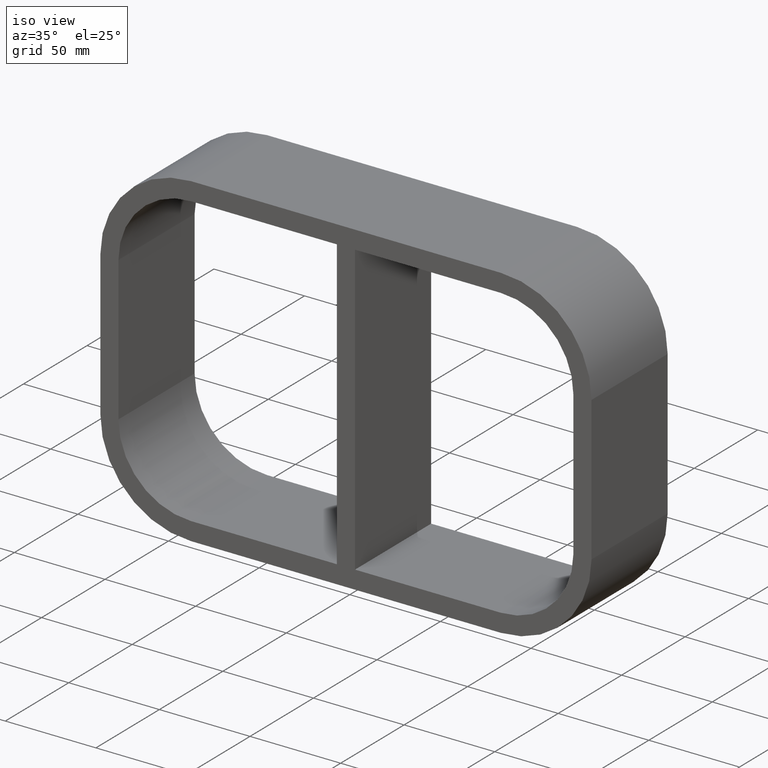
[diagram: clean part render]
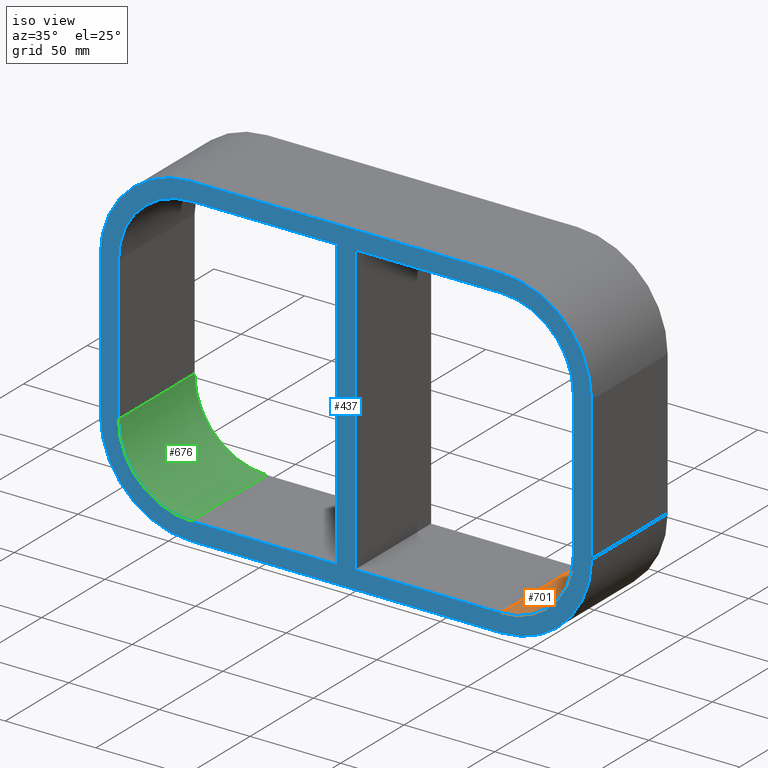
[diagram: same view with three faces highlighted in distinct colors, each labeled with its STEP entity id]
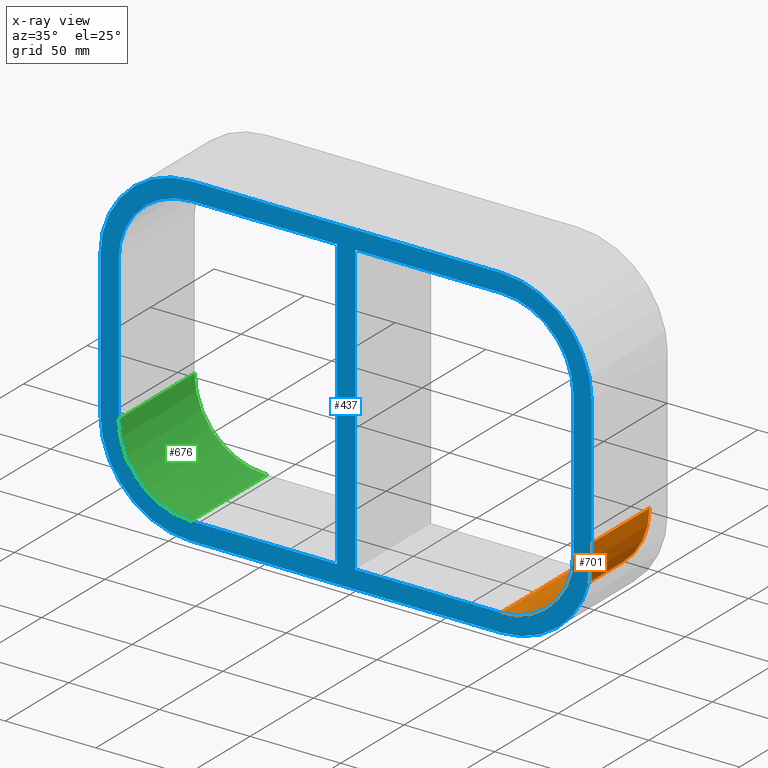
[diagram: x-ray of the same camera — body ghosted, the three highlighted faces saturated]
A machine part, iso view with three faces highlighted in distinct colors.
The next image is the same camera in x-ray (body ghosted, the three faces saturated) — at least one of them is partly hidden behind the body in this view.
Their STEP definitions:

[orange] entity #701 — the highlighted cylindrical surface (partial cylindrical patch) has radius 40 mm, axis along (0, -1, 0).
#185=CARTESIAN_POINT('',(85.5,-3.0,-79.750000000000014));
#186=VERTEX_POINT('',#185);
#193=CARTESIAN_POINT('',(85.5,57.0,-79.750000000000014));
#194=VERTEX_POINT('',#193);
#195=CARTESIAN_POINT('',(85.5,57.0,-79.750000000000014));
#196=DIRECTION('',(0.0,-1.0,0.0));
#197=VECTOR('',#196,60.0);
#198=LINE('',#195,#197);
#199=EDGE_CURVE('',#194,#186,#198,.T.);
#419=CARTESIAN_POINT('',(125.5,-3.0,-39.750000000000014));
#420=VERTEX_POINT('',#419);
#427=CARTESIAN_POINT('',(85.5,-3.0,-39.750000000000014));
#428=DIRECTION('',(0.0,-1.0,0.0));
#429=DIRECTION('',(0.707106781186547,0.0,-0.707106781186547));
#430=AXIS2_PLACEMENT_3D('',#427,#428,#429);
#431=CIRCLE('',#430,39.999999999999993);
#432=EDGE_CURVE('',#186,#420,#431,.T.);
#677=CARTESIAN_POINT('',(85.5,0.0,-39.750000000000014));
#678=DIRECTION('',(0.0,-1.0,0.0));
#679=DIRECTION('',(0.707106781186547,0.0,-0.707106781186547));
#680=AXIS2_PLACEMENT_3D('',#677,#678,#679);
#681=CYLINDRICAL_SURFACE('',#680,40.0);
#682=CARTESIAN_POINT('',(125.5,57.0,-39.750000000000014));
#683=VERTEX_POINT('',#682);
#684=CARTESIAN_POINT('',(85.5,57.0,-39.750000000000014));
#685=DIRECTION('',(0.0,1.0,0.0));
#686=DIRECTION('',(0.707106781186547,0.0,-0.707106781186547));
#687=AXIS2_PLACEMENT_3D('',#684,#685,#686);
#688=CIRCLE('',#687,39.999999999999993);
#689=EDGE_CURVE('',#683,#194,#688,.T.);
#690=ORIENTED_EDGE('',*,*,#689,.T.);
#691=ORIENTED_EDGE('',*,*,#199,.T.);
#692=ORIENTED_EDGE('',*,*,#432,.T.);
#693=CARTESIAN_POINT('',(125.5,-3.0,-39.750000000000014));
#694=DIRECTION('',(0.0,1.0,0.0));
#695=VECTOR('',#694,60.0);
#696=LINE('',#693,#695);
#697=EDGE_CURVE('',#420,#683,#696,.T.);
#698=ORIENTED_EDGE('',*,*,#697,.T.);
#699=EDGE_LOOP('',(#690,#691,#692,#698));
#700=FACE_OUTER_BOUND('',#699,.T.);
#701=ADVANCED_FACE('',(#700),#681,.F.);

[blue] entity #437 — the highlighted planar face has unit normal (0, 1, 0).
#73=CARTESIAN_POINT('',(-5.000000000001492,-3.0,-79.750000000000014));
#74=VERTEX_POINT('',#73);
#75=CARTESIAN_POINT('',(-5.00000000000151,-3.0,79.750000000000014));
#76=VERTEX_POINT('',#75);
#77=CARTESIAN_POINT('',(-5.000000000001492,-3.0,-79.750000000000014));
#78=DIRECTION('',(0.0,0.0,1.0));
#79=VECTOR('',#78,159.50000000000003);
#80=LINE('',#77,#79);
#81=EDGE_CURVE('',#74,#76,#80,.T.);
#113=CARTESIAN_POINT('',(5.0,-3.0,79.750000000000014));
#114=VERTEX_POINT('',#113);
#115=CARTESIAN_POINT('',(5.0,-3.0,-79.749999999985036));
#116=VERTEX_POINT('',#115);
#117=CARTESIAN_POINT('',(5.0,-3.0,79.750000000000014));
#118=DIRECTION('',(0.0,0.0,-1.0));
#119=VECTOR('',#118,159.49999999998505);
#120=LINE('',#117,#119);
#121=EDGE_CURVE('',#114,#116,#120,.T.);
#162=CARTESIAN_POINT('',(-85.5,-3.0,-79.750000000000014));
#163=VERTEX_POINT('',#162);
#170=CARTESIAN_POINT('',(-5.000000000001492,-3.0,-79.750000000000014));
#171=DIRECTION('',(-1.0,0.0,0.0));
#172=VECTOR('',#171,80.499999999998508);
#173=LINE('',#170,#172);
#174=EDGE_CURVE('',#74,#163,#173,.T.);
#185=CARTESIAN_POINT('',(85.5,-3.0,-79.750000000000014));
#186=VERTEX_POINT('',#185);
#187=CARTESIAN_POINT('',(85.5,-3.0,-79.750000000000014));
#188=DIRECTION('',(-1.0,0.0,0.0));
#189=VECTOR('',#188,80.5);
#190=LINE('',#187,#189);
#191=EDGE_CURVE('',#186,#116,#190,.T.);
#224=CARTESIAN_POINT('',(85.5,-3.0,79.750000000000014));
#225=VERTEX_POINT('',#224);
#232=CARTESIAN_POINT('',(5.0,-3.0,79.750000000000014));
#233=DIRECTION('',(1.0,0.0,0.0));
#234=VECTOR('',#233,80.5);
#235=LINE('',#232,#234);
#236=EDGE_CURVE('',#114,#225,#235,.T.);
#247=CARTESIAN_POINT('',(-85.5,-3.0,79.750000000000014));
#248=VERTEX_POINT('',#247);
#249=CARTESIAN_POINT('',(-85.5,-3.0,79.750000000000014));
#250=DIRECTION('',(1.0,0.0,0.0));
#251=VECTOR('',#250,80.499999999998494);
#252=LINE('',#249,#251);
#253=EDGE_CURVE('',#248,#76,#252,.T.);
#288=CARTESIAN_POINT('',(135.5,-3.0,-39.750000000000014));
#289=VERTEX_POINT('',#288);
#296=CARTESIAN_POINT('',(85.5,-3.0,-89.750000000000014));
#297=VERTEX_POINT('',#296);
#298=CARTESIAN_POINT('',(85.5,-3.0,-39.750000000000014));
#299=DIRECTION('',(0.0,1.0,0.0));
#300=DIRECTION('',(0.707106781186547,0.0,-0.707106781186547));
#301=AXIS2_PLACEMENT_3D('',#298,#299,#300);
#302=CIRCLE('',#301,49.999999999999986);
#303=EDGE_CURVE('',#289,#297,#302,.T.);
#314=CARTESIAN_POINT('',(0.0,-3.0,0.0));
#315=DIRECTION('',(0.0,1.0,0.0));
#316=DIRECTION('',(0.0,0.0,1.0));
#317=AXIS2_PLACEMENT_3D('',#314,#315,#316);
#318=PLANE('',#317);
#319=ORIENTED_EDGE('',*,*,#303,.F.);
#320=CARTESIAN_POINT('',(135.5,-3.0,39.750000000000014));
#321=VERTEX_POINT('',#320);
#322=CARTESIAN_POINT('',(135.5,-3.0,-39.750000000000014));
#323=DIRECTION('',(0.0,0.0,1.0));
#324=VECTOR('',#323,79.500000000000028);
#325=LINE('',#322,#324);
#326=EDGE_CURVE('',#289,#321,#325,.T.);
#327=ORIENTED_EDGE('',*,*,#326,.T.);
#328=CARTESIAN_POINT('',(85.5,-3.0,89.750000000000014));
#329=VERTEX_POINT('',#328);
#330=CARTESIAN_POINT('',(85.5,-3.0,39.750000000000014));
#331=DIRECTION('',(0.0,1.0,0.0));
#332=DIRECTION('',(0.707106781186547,0.0,0.707106781186547));
#333=AXIS2_PLACEMENT_3D('',#330,#331,#332);
#334=CIRCLE('',#333,49.999999999999986);
#335=EDGE_CURVE('',#329,#321,#334,.T.);
#336=ORIENTED_EDGE('',*,*,#335,.F.);
#337=CARTESIAN_POINT('',(-85.5,-3.0,89.750000000000014));
#338=VERTEX_POINT('',#337);
#339=CARTESIAN_POINT('',(85.5,-3.0,89.750000000000014));
#340=DIRECTION('',(-1.0,0.0,0.0));
#341=VECTOR('',#340,171.0);
#342=LINE('',#339,#341);
#343=EDGE_CURVE('',#329,#338,#342,.T.);
#344=ORIENTED_EDGE('',*,*,#343,.T.);
#345=CARTESIAN_POINT('',(-135.5,-3.0,39.750000000000014));
#346=VERTEX_POINT('',#345);
#347=CARTESIAN_POINT('',(-85.5,-3.0,39.750000000000014));
#348=DIRECTION('',(0.0,1.0,0.0));
#349=DIRECTION('',(-0.707106781186547,0.0,0.707106781186547));
#350=AXIS2_PLACEMENT_3D('',#347,#348,#349);
#351=CIRCLE('',#350,49.999999999999986);
#352=EDGE_CURVE('',#346,#338,#351,.T.);
#353=ORIENTED_EDGE('',*,*,#352,.F.);
#354=CARTESIAN_POINT('',(-135.5,-3.0,-39.750000000000014));
#355=VERTEX_POINT('',#354);
#356=CARTESIAN_POINT('',(-135.5,-3.0,39.750000000000014));
#357=DIRECTION('',(0.0,0.0,-1.0));
#358=VECTOR('',#357,79.500000000000028);
#359=LINE('',#356,#358);
#360=EDGE_CURVE('',#346,#355,#359,.T.);
#361=ORIENTED_EDGE('',*,*,#360,.T.);
#362=CARTESIAN_POINT('',(-85.5,-3.0,-89.750000000000014));
#363=VERTEX_POINT('',#362);
#364=CARTESIAN_POINT('',(-85.5,-3.0,-39.750000000000014));
#365=DIRECTION('',(0.0,1.0,0.0));
#366=DIRECTION('',(-0.707106781186547,0.0,-0.707106781186547));
#367=AXIS2_PLACEMENT_3D('',#364,#365,#366);
#368=CIRCLE('',#367,49.999999999999986);
#369=EDGE_CURVE('',#363,#355,#368,.T.);
#370=ORIENTED_EDGE('',*,*,#369,.F.);
#371=CARTESIAN_POINT('',(-85.5,-3.0,-89.750000000000014));
#372=DIRECTION('',(1.0,0.0,0.0));
#373=VECTOR('',#372,171.0);
#374=LINE('',#371,#373);
#375=EDGE_CURVE('',#363,#297,#374,.T.);
#376=ORIENTED_EDGE('',*,*,#375,.T.);
#377=EDGE_LOOP('',(#319,#327,#336,#344,#353,#361,#370,#376));
#378=FACE_OUTER_BOUND('',#377,.T.);
#379=ORIENTED_EDGE('',*,*,#174,.T.);
#380=CARTESIAN_POINT('',(-125.5,-3.0,-39.750000000000014));
#381=VERTEX_POINT('',#380);
#382=CARTESIAN_POINT('',(-85.5,-3.0,-39.750000000000014));
#383=DIRECTION('',(0.0,-1.0,0.0));
#384=DIRECTION('',(-0.707106781186547,0.0,-0.707106781186547));
#385=AXIS2_PLACEMENT_3D('',#382,#383,#384);
#386=CIRCLE('',#385,39.999999999999993);
#387=EDGE_CURVE('',#381,#163,#386,.T.);
#388=ORIENTED_EDGE('',*,*,#387,.F.);
#389=CARTESIAN_POINT('',(-125.5,-3.0,39.750000000000014));
#390=VERTEX_POINT('',#389);
#391=CARTESIAN_POINT('',(-125.5,-3.0,-39.750000000000014));
#392=DIRECTION('',(0.0,0.0,1.0));
#393=VECTOR('',#392,79.500000000000028);
#394=LINE('',#391,#393);
#395=EDGE_CURVE('',#381,#390,#394,.T.);
#396=ORIENTED_EDGE('',*,*,#395,.T.);
#397=CARTESIAN_POINT('',(-85.5,-3.0,39.750000000000014));
#398=DIRECTION('',(0.0,-1.0,0.0));
#399=DIRECTION('',(-0.707106781186547,0.0,0.707106781186547));
#400=AXIS2_PLACEMENT_3D('',#397,#398,#399);
#401=CIRCLE('',#400,39.999999999999993);
#402=EDGE_CURVE('',#248,#390,#401,.T.);
#403=ORIENTED_EDGE('',*,*,#402,.F.);
#404=ORIENTED_EDGE('',*,*,#253,.T.);
#405=ORIENTED_EDGE('',*,*,#81,.F.);
#406=EDGE_LOOP('',(#379,#388,#396,#403,#404,#405));
#407=FACE_BOUND('',#406,.T.);
#408=ORIENTED_EDGE('',*,*,#121,.F.);
#409=ORIENTED_EDGE('',*,*,#236,.T.);
#410=CARTESIAN_POINT('',(125.5,-3.0,39.750000000000014));
#411=VERTEX_POINT('',#410);
#412=CARTESIAN_POINT('',(85.5,-3.0,39.750000000000014));
#413=DIRECTION('',(0.0,-1.0,0.0));
#414=DIRECTION('',(0.707106781186547,0.0,0.707106781186547));
#415=AXIS2_PLACEMENT_3D('',#412,#413,#414);
#416=CIRCLE('',#415,39.999999999999993);
#417=EDGE_CURVE('',#411,#225,#416,.T.);
#418=ORIENTED_EDGE('',*,*,#417,.F.);
#419=CARTESIAN_POINT('',(125.5,-3.0,-39.750000000000014));
#420=VERTEX_POINT('',#419);
#421=CARTESIAN_POINT('',(125.5,-3.0,39.750000000000014));
#422=DIRECTION('',(0.0,0.0,-1.0));
#423=VECTOR('',#422,79.500000000000028);
#424=LINE('',#421,#423);
#425=EDGE_CURVE('',#411,#420,#424,.T.);
#426=ORIENTED_EDGE('',*,*,#425,.T.);
#427=CARTESIAN_POINT('',(85.5,-3.0,-39.750000000000014));
#428=DIRECTION('',(0.0,-1.0,0.0));
#429=DIRECTION('',(0.707106781186547,0.0,-0.707106781186547));
#430=AXIS2_PLACEMENT_3D('',#427,#428,#429);
#431=CIRCLE('',#430,39.999999999999993);
#432=EDGE_CURVE('',#186,#420,#431,.T.);
#433=ORIENTED_EDGE('',*,*,#432,.F.);
#434=ORIENTED_EDGE('',*,*,#191,.T.);
#435=EDGE_LOOP('',(#408,#409,#418,#426,#433,#434));
#436=FACE_BOUND('',#435,.T.);
#437=ADVANCED_FACE('',(#378,#407,#436),#318,.F.);

[green] entity #676 — the highlighted cylindrical surface (partial cylindrical patch) has radius 40 mm, axis along (0, 1, 0).
#154=CARTESIAN_POINT('',(-85.5,57.0,-79.750000000000014));
#155=VERTEX_POINT('',#154);
#162=CARTESIAN_POINT('',(-85.5,-3.0,-79.750000000000014));
#163=VERTEX_POINT('',#162);
#164=CARTESIAN_POINT('',(-85.5,-3.0,-79.750000000000014));
#165=DIRECTION('',(0.0,1.0,0.0));
#166=VECTOR('',#165,60.0);
#167=LINE('',#164,#166);
#168=EDGE_CURVE('',#163,#155,#167,.T.);
#380=CARTESIAN_POINT('',(-125.5,-3.0,-39.750000000000014));
#381=VERTEX_POINT('',#380);
#382=CARTESIAN_POINT('',(-85.5,-3.0,-39.750000000000014));
#383=DIRECTION('',(0.0,-1.0,0.0));
#384=DIRECTION('',(-0.707106781186547,0.0,-0.707106781186547));
#385=AXIS2_PLACEMENT_3D('',#382,#383,#384);
#386=CIRCLE('',#385,39.999999999999993);
#387=EDGE_CURVE('',#381,#163,#386,.T.);
#617=CARTESIAN_POINT('',(-125.5,57.0,-39.750000000000014));
#618=VERTEX_POINT('',#617);
#619=CARTESIAN_POINT('',(-125.5,57.0,-39.750000000000014));
#620=DIRECTION('',(0.0,-1.0,0.0));
#621=VECTOR('',#620,60.0);
#622=LINE('',#619,#621);
#623=EDGE_CURVE('',#618,#381,#622,.T.);
#659=CARTESIAN_POINT('',(-85.5,0.0,-39.750000000000014));
#660=DIRECTION('',(0.0,1.0,0.0));
#661=DIRECTION('',(-0.707106781186547,0.0,-0.707106781186547));
#662=AXIS2_PLACEMENT_3D('',#659,#660,#661);
#663=CYLINDRICAL_SURFACE('',#662,40.0);
#664=ORIENTED_EDGE('',*,*,#387,.T.);
#665=ORIENTED_EDGE('',*,*,#168,.T.);
#666=CARTESIAN_POINT('',(-85.5,57.0,-39.750000000000014));
#667=DIRECTION('',(0.0,1.0,0.0));
#668=DIRECTION('',(-0.707106781186547,0.0,-0.707106781186547));
#669=AXIS2_PLACEMENT_3D('',#666,#667,#668);
#670=CIRCLE('',#669,39.999999999999993);
#671=EDGE_CURVE('',#155,#618,#670,.T.);
#672=ORIENTED_EDGE('',*,*,#671,.T.);
#673=ORIENTED_EDGE('',*,*,#623,.T.);
#674=EDGE_LOOP('',(#664,#665,#672,#673));
#675=FACE_OUTER_BOUND('',#674,.T.);
#676=ADVANCED_FACE('',(#675),#663,.F.);